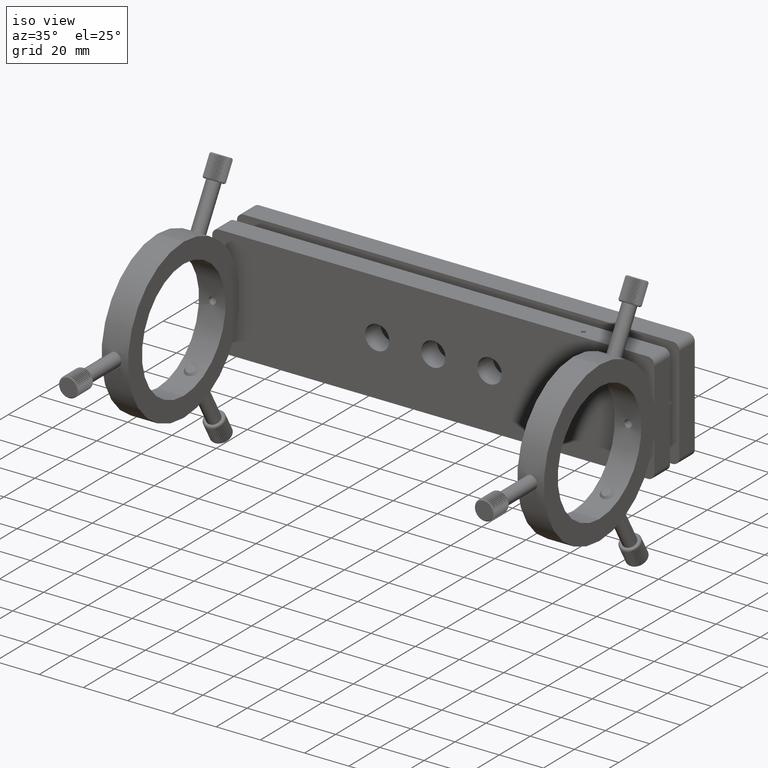
[diagram: clean part render]
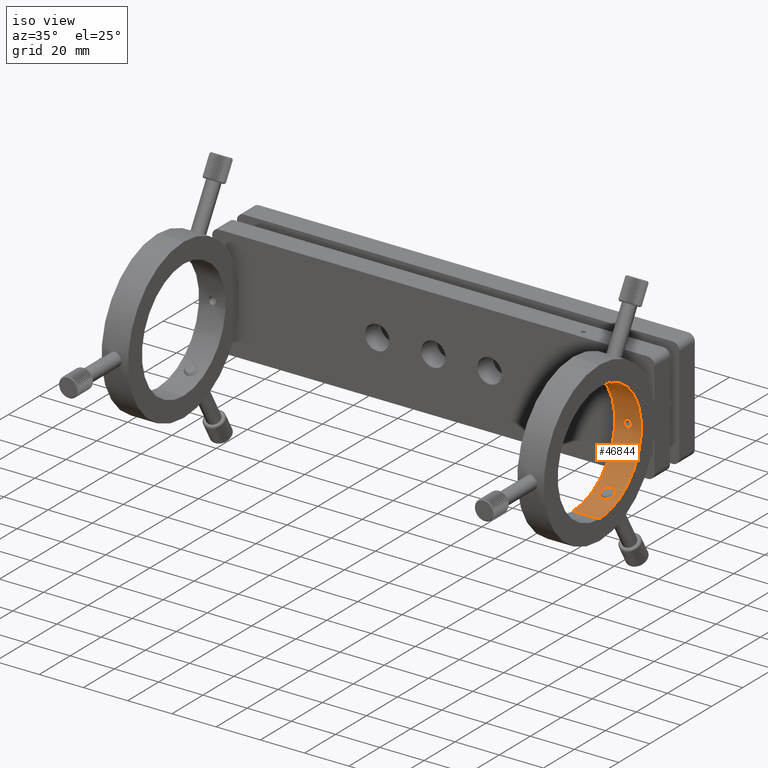
[diagram: same view with one face highlighted and labeled with its STEP entity id]
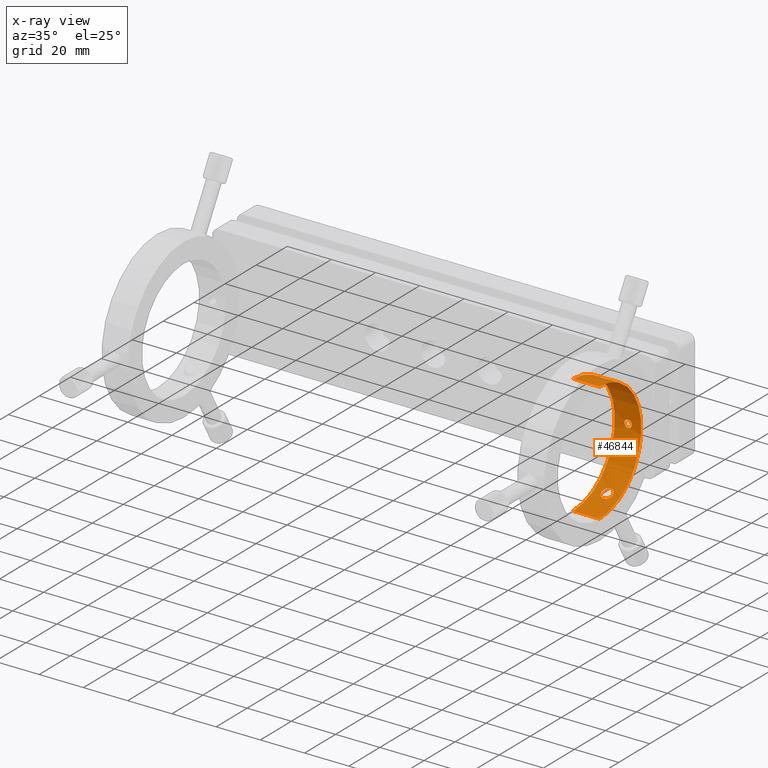
[diagram: x-ray of the same camera — body ghosted, the highlighted face saturated]
A machine part, iso view. The second image highlights one B-rep face of the part: STEP entity #46844.
The next image is the same camera in x-ray: the body ghosted, the highlighted face saturated — about 0% of this face is hidden behind the body in this view.
In plain terms, the highlighted cylindrical surface (partial cylindrical patch) has radius 27 mm, axis along (1, -0, 0).
Its self-contained STEP definition (entity closure, byte-faithful):
#313 = CARTESIAN_POINT ( 'NONE',  ( 88.71693914623077100, -25.91295791704509100, -1.942341319654012400E-015 ) ) ;
#349 = VERTEX_POINT ( 'NONE', #6432 ) ;
#398 = EDGE_CURVE ( 'NONE', #10161, #8938, #41998, .T. ) ;
#666 = CARTESIAN_POINT ( 'NONE',  ( 89.26028788232962100, -41.40628206874961100, 24.42540312065094100 ) ) ;
#779 = CARTESIAN_POINT ( 'NONE',  ( 91.09759897672583400, -25.95370413744505100, -1.483358571569484600 ) ) ;
#991 = CARTESIAN_POINT ( 'NONE',  ( 88.19790793861736200, -40.51316261916271300, 23.98465268375120000 ) ) ;
#1086 = CARTESIAN_POINT ( 'NONE',  ( 92.73959206605607600, -38.72194532464897100, -22.97037465325696800 ) ) ;
#1300 = CARTESIAN_POINT ( 'NONE',  ( 88.37731866243467500, -38.11572552407042700, 22.58451724495219900 ) ) ;
#1568 = CARTESIAN_POINT ( 'NONE',  ( 90.53014524056013100, -37.30588934881392000, -22.03223571738762800 ) ) ;
#1728 = CARTESIAN_POINT ( 'NONE',  ( 92.85100372107240200, -39.69632608730525900, -23.54456835397855500 ) ) ;
#1889 = EDGE_LOOP ( 'NONE', ( #24956, #16608, #12272, #7391 ) ) ;
#2411 = CARTESIAN_POINT ( 'NONE',  ( 92.25169898758107900, -40.86766389173001800, 24.16453140492767900 ) ) ;
#2580 = CARTESIAN_POINT ( 'NONE',  ( 91.89203864277958200, -41.17082945453542900, 24.31317875682664800 ) ) ;
#2606 = CARTESIAN_POINT ( 'NONE',  ( 89.11170750235031300, -41.33425366928968000, -24.39143328542642300 ) ) ;
#2851 = EDGE_CURVE ( 'NONE', #43583, #349, #4417, .T. ) ;
#3185 = CARTESIAN_POINT ( 'NONE',  ( 90.15054143025082600, -25.96276068515827600, 1.639303137904372800 ) ) ;
#3353 = CARTESIAN_POINT ( 'NONE',  ( 91.96430041555505900, -25.91613171525491300, 0.4272001033201475700 ) ) ;
#3510 = CARTESIAN_POINT ( 'NONE',  ( 88.93558841772109200, -25.92550334081184000, 0.8278212260220021400 ) ) ;
#3662 = CARTESIAN_POINT ( 'NONE',  ( 90.58282259888321200, -25.96341702383584100, 1.649922922802727000 ) ) ;
#3674 = CARTESIAN_POINT ( 'NONE',  ( 92.35373792534305400, -40.75620457674102700, -24.10875507086635100 ) ) ;
#3846 = CARTESIAN_POINT ( 'NONE',  ( 90.36693914623079100, -41.63601636773608300, -24.53223571738764600 ) ) ;
#4417 = LINE ( 'NONE', #12970, #43319 ) ;
#4578 = CARTESIAN_POINT ( 'NONE',  ( 89.25717380858128500, -37.51454367034093500, 22.17865573987122500 ) ) ;
#4688 = CARTESIAN_POINT ( 'NONE',  ( 91.97310042328231800, -25.91572701174252600, -0.4346578457671056400 ) ) ;
#4742 = CARTESIAN_POINT ( 'NONE',  ( 90.36693914623072000, -41.63601636773625400, 24.53223571738768500 ) ) ;
#4902 = EDGE_LOOP ( 'NONE', ( #16819, #17560 ) ) ;
#5022 = CARTESIAN_POINT ( 'NONE',  ( 84.36693914623072000, -52.91295791704509100, 26.99999999999999300 ) ) ;
#5026 = CARTESIAN_POINT ( 'NONE',  ( 90.79752532690265800, -25.96072411873246500, -1.607470466293399600 ) ) ;
#5077 = CARTESIAN_POINT ( 'NONE',  ( 88.83881242538730300, -37.73002209735227600, 22.32681951531578700 ) ) ;
#5090 = CARTESIAN_POINT ( 'NONE',  ( 89.26028788232966300, -37.51327624103354500, -22.17777515806230000 ) ) ;
#5391 = CARTESIAN_POINT ( 'NONE',  ( 90.04154320002265900, -37.31884729831206500, -22.04143250485316200 ) ) ;
#5879 = CARTESIAN_POINT ( 'NONE',  ( 90.03646404388636900, -41.63601636773608300, -24.53223571738763900 ) ) ;
#6369 = CARTESIAN_POINT ( 'NONE',  ( 88.71312496508728900, -41.07542067914546600, -24.26697496150304900 ) ) ;
#6432 = CARTESIAN_POINT ( 'NONE',  ( 96.36693914623082000, -52.91295791704509100, -26.99999999999999300 ) ) ;
#6666 = CARTESIAN_POINT ( 'NONE',  ( 92.86687999279071400, -39.27088047108174600, 23.30065112601596400 ) ) ;
#6806 = CARTESIAN_POINT ( 'NONE',  ( 92.01693914623072600, -25.91295791704509500, 1.717421317518219500E-015 ) ) ;
#6973 = CARTESIAN_POINT ( 'NONE',  ( 89.27749987547203100, -25.94152017434152700, 1.243980416632381600 ) ) ;
#7072 = VERTEX_POINT ( 'NONE', #12535 ) ;
#7124 = CARTESIAN_POINT ( 'NONE',  ( 88.71693914623078600, -25.91295791704508700, 0.1077001652021071400 ) ) ;
#7225 = EDGE_CURVE ( 'NONE', #26781, #10240, #15886, .T. ) ;
#7285 = CARTESIAN_POINT ( 'NONE',  ( 90.80001557532223400, -25.96067324348842200, 1.606593475439047000 ) ) ;
#7391 = ORIENTED_EDGE ( 'NONE', *, *, #7225, .F. ) ;
#7456 = CARTESIAN_POINT ( 'NONE',  ( 91.67925665004254700, -25.93155504907102600, 1.005957496595285300 ) ) ;
#7469 = CARTESIAN_POINT ( 'NONE',  ( 92.61409268216247900, -40.38333544869318100, -23.91717404385531500 ) ) ;
#7628 = CARTESIAN_POINT ( 'NONE',  ( 91.47594728453640300, -41.40529623117225800, -24.42493995307666300 ) ) ;
#8204 = CARTESIAN_POINT ( 'NONE',  ( 90.04154320002261600, -41.62157274140883300, 24.52561219767411800 ) ) ;
#8367 = CARTESIAN_POINT ( 'NONE',  ( 90.20377113178243200, -41.63601636773626100, 24.53223571738768500 ) ) ;
#8530 = CARTESIAN_POINT ( 'NONE',  ( 87.94623844231246300, -38.85750917287580800, 23.05363109537896100 ) ) ;
#8655 = CARTESIAN_POINT ( 'NONE',  ( 89.04739468055439000, -25.93156365996145100, -1.013694613292268800 ) ) ;
#8791 = CARTESIAN_POINT ( 'NONE',  ( 91.17231316244313200, -37.41058516013752900, -22.10611685802087600 ) ) ;
#8938 = VERTEX_POINT ( 'NONE', #22492 ) ;
#9098 = CARTESIAN_POINT ( 'NONE',  ( 92.78679639433086400, -39.97878124443673900, -23.70090989181247600 ) ) ;
#9838 = CARTESIAN_POINT ( 'NONE',  ( 90.36693914623079100, -41.63601636773608300, -24.53223571738764600 ) ) ;
#9974 = CARTESIAN_POINT ( 'NONE',  ( 92.78679639433080700, -38.85445619423389000, 23.05178052142122900 ) ) ;
#10002 = CARTESIAN_POINT ( 'NONE',  ( 88.48275648324971600, -40.86807457208168900, -24.16472939734893500 ) ) ;
#10132 = CARTESIAN_POINT ( 'NONE',  ( 92.01980149125689900, -37.81521519304924100, 22.38462669957388900 ) ) ;
#10161 = VERTEX_POINT ( 'NONE', #29391 ) ;
#10216 = DIRECTION ( 'NONE',  ( 1.000000000000000000, -2.025454320056202900E-032, 1.054711873393898300E-015 ) ) ;
#10240 = VERTEX_POINT ( 'NONE', #32860 ) ;
#10294 = CARTESIAN_POINT ( 'NONE',  ( 92.73959206605601900, -40.11553622907657500, 23.77496473706846600 ) ) ;
#10905 = CARTESIAN_POINT ( 'NONE',  ( 88.71693914623077100, -25.91295791704509100, -1.942341319654012400E-015 ) ) ;
#11030 = CARTESIAN_POINT ( 'NONE',  ( 92.01693914623072600, -25.91295791704509500, 1.717421317518219500E-015 ) ) ;
#11084 = CARTESIAN_POINT ( 'NONE',  ( 92.01980149125691400, -41.07617390298074900, -24.26734208856908400 ) ) ;
#11154 = B_SPLINE_CURVE_WITH_KNOTS ( 'NONE', 3,
 ( #3846, #33694, #26270, #30200, #31042, #7628, #22461, #33362, #11084, #48792, #3674, #33856, #7469, #16180, #9098, #1728, #12242, #39253, #35470, #12562, #1086, #24270, #34992, #46187, #31511, #39080, #43039, #46652, #24117, #8791, #31351, #34843, #1568, #27733 ),
 .UNSPECIFIED., .F., .F.,
 ( 4, 2, 2, 2, 2, 2, 2, 2, 2, 2, 2, 2, 2, 2, 2, 2, 4 ),
 ( 0.0000000000000000000, 0.0004887702690820997300, 0.0009775405381641994500, 0.001466310807246299100, 0.001955081076328398900, 0.002443851345410498700, 0.002932621614492598100, 0.003421391883574698000, 0.003910162152656797800, 0.004398932421738897600, 0.004887702690820997500, 0.005376472959903097300, 0.005865243228985196300, 0.006354013498067296100, 0.006842783767149395900, 0.007331554036231495800, 0.007820324305313595600 ),
 .UNSPECIFIED. ) ;
#11223 = CARTESIAN_POINT ( 'NONE',  ( 89.83602211320942400, -25.95837764036506800, 1.565987256897979800 ) ) ;
#12104 = CARTESIAN_POINT ( 'NONE',  ( 90.25672849628244900, -25.96341627302213000, -1.649910659698136800 ) ) ;
#12155 = CARTESIAN_POINT ( 'NONE',  ( 90.03646404388632600, -37.30588934881406300, 22.03223571738773500 ) ) ;
#12242 = CARTESIAN_POINT ( 'NONE',  ( 92.86687999279075700, -39.55504084017859200, -23.46471119160704800 ) ) ;
#12272 = ORIENTED_EDGE ( 'NONE', *, *, #46968, .F. ) ;
#12306 = CARTESIAN_POINT ( 'NONE',  ( 89.11170750235025700, -37.57870918103028400, 22.22316866417626000 ) ) ;
#12480 = CARTESIAN_POINT ( 'NONE',  ( 88.48508743856619700, -38.00591613514485100, -22.51207278851296000 ) ) ;
#12535 = CARTESIAN_POINT ( 'NONE',  ( 90.36693914623079100, -41.63601636773608300, -24.53223571738764600 ) ) ;
#12562 = CARTESIAN_POINT ( 'NONE',  ( 92.78684029790711900, -38.85482506467888400, -23.05199825724794800 ) ) ;
#12581 = CARTESIAN_POINT ( 'NONE',  ( 91.68519442467071200, -25.93162864647801400, -1.015411206887411700 ) ) ;
#12647 = CARTESIAN_POINT ( 'NONE',  ( 88.71569909594374800, -37.81403663151161300, -22.38383103795883100 ) ) ;
#12682 = EDGE_CURVE ( 'NONE', #37979, #42246, #35767, .T. ) ;
#12804 = CARTESIAN_POINT ( 'NONE',  ( 90.20377113178250300, -37.30588934881392000, -22.03223571738762500 ) ) ;
#12970 = CARTESIAN_POINT ( 'NONE',  ( 84.36693914623077700, -52.91295791704509100, -27.00000000000003900 ) ) ;
#13029 = FACE_BOUND ( 'NONE', #48171, .T. ) ;
#13164 = CARTESIAN_POINT ( 'NONE',  ( 84.36693914623072000, -52.91295791704509100, 27.00000000000002500 ) ) ;
#13275 = CARTESIAN_POINT ( 'NONE',  ( 90.36693914623079100, -37.30588934881392000, -22.03223571738762100 ) ) ;
#13449 = CARTESIAN_POINT ( 'NONE',  ( 88.11950103492330300, -40.38296355990035400, -23.91698585037553200 ) ) ;
#13579 = CARTESIAN_POINT ( 'NONE',  ( 90.53014524056010300, -41.63601636773624600, 24.53223571738768900 ) ) ;
#14219 = CARTESIAN_POINT ( 'NONE',  ( 90.69471139435314900, -37.31918188184368300, 22.04166889366898000 ) ) ;
#14527 = CARTESIAN_POINT ( 'NONE',  ( 91.79901940316560200, -25.92546493686239400, 0.8266038068291619000 ) ) ;
#14677 = CARTESIAN_POINT ( 'NONE',  ( 91.60956532232641800, -25.93489576997605200, 1.090854160047212100 ) ) ;
#15032 = CARTESIAN_POINT ( 'NONE',  ( 84.36693914623077700, -52.91295791704509100, -27.00000000000000700 ) ) ;
#15766 = CARTESIAN_POINT ( 'NONE',  ( 88.37949475896810700, -40.75535493968742900, 24.10832175068400200 ) ) ;
#15886 = LINE ( 'NONE', #13164, #26561 ) ;
#15916 = CARTESIAN_POINT ( 'NONE',  ( 88.48508743856608300, -40.87045188129872000, 24.16591327265818700 ) ) ;
#16036 = CARTESIAN_POINT ( 'NONE',  ( 89.53954219653229500, -25.95087244318883200, -1.431625285050159200 ) ) ;
#16180 = CARTESIAN_POINT ( 'NONE',  ( 92.73877632036693800, -40.11747142309504000, -23.77600005944308100 ) ) ;
#16251 = CARTESIAN_POINT ( 'NONE',  ( 89.11498036992618700, -37.57713769710993300, -22.22208378763991700 ) ) ;
#16418 = CARTESIAN_POINT ( 'NONE',  ( 88.19790793861740500, -38.34153704091125500, -22.73086407156865000 ) ) ;
#16574 = CARTESIAN_POINT ( 'NONE',  ( 88.84155763989034000, -37.72826201596434700, -22.32562205347842600 ) ) ;
#16608 = ORIENTED_EDGE ( 'NONE', *, *, #2851, .T. ) ;
#16819 = ORIENTED_EDGE ( 'NONE', *, *, #29466, .F. ) ;
#17066 = CARTESIAN_POINT ( 'NONE',  ( 89.25717380858135600, -41.40488574787927000, -24.42474578557768800 ) ) ;
#17369 = CARTESIAN_POINT ( 'NONE',  ( 90.36693914623073500, -37.30588934881406300, 22.03223571738773500 ) ) ;
#17560 = ORIENTED_EDGE ( 'NONE', *, *, #34101, .F. ) ;
#17682 = CARTESIAN_POINT ( 'NONE',  ( 91.17231316244304700, -41.51968551742550100, 24.47850705542826000 ) ) ;
#17830 = CARTESIAN_POINT ( 'NONE',  ( 91.62133499403778100, -41.33459647964201600, 24.39159257851655500 ) ) ;
#18295 = CARTESIAN_POINT ( 'NONE',  ( 89.05508111830802400, -25.93157709467661600, 1.006519450796833800 ) ) ;
#18316 = FACE_OUTER_BOUND ( 'NONE', #1889, .T. ) ;
#18639 = CARTESIAN_POINT ( 'NONE',  ( 89.93889328263992400, -25.96023029761005700, 1.597159819206348300 ) ) ;
#18684 = CARTESIAN_POINT ( 'NONE',  ( 92.35373792534299800, -38.11254024221008100, 22.58243475567790500 ) ) ;
#19395 = CARTESIAN_POINT ( 'NONE',  ( 88.12105077201242400, -40.38572713804381200, 23.91843195474404700 ) ) ;
#19554 = CARTESIAN_POINT ( 'NONE',  ( 87.88338959637619000, -39.69902698495519600, 23.54607330503641500 ) ) ;
#19661 = CARTESIAN_POINT ( 'NONE',  ( 90.58332316888609600, -25.96343258193902400, -1.650177034178419900 ) ) ;
#19831 = CARTESIAN_POINT ( 'NONE',  ( 89.83379798801621500, -25.95833325854834000, -1.565225978753670200 ) ) ;
#20042 = CARTESIAN_POINT ( 'NONE',  ( 88.84155763989025400, -41.17075001398318100, 24.31314342581663400 ) ) ;
#20055 = CARTESIAN_POINT ( 'NONE',  ( 87.86706826062454900, -39.26829671586889200, -23.29915191425655900 ) ) ;
#20162 = DIRECTION ( 'NONE',  ( -1.000000000000000000, 2.025454320056202900E-032, -1.054711873393898300E-015 ) ) ;
#20546 = CARTESIAN_POINT ( 'NONE',  ( 89.71900990088090600, -37.37136319026536300, -22.07849329559904600 ) ) ;
#21182 = CARTESIAN_POINT ( 'NONE',  ( 92.86699797286453900, -39.55346979636629400, 23.46381676308041300 ) ) ;
#21338 = CARTESIAN_POINT ( 'NONE',  ( 92.61409268216240800, -38.46488884250867100, 22.80955837934877900 ) ) ;
#21666 = CARTESIAN_POINT ( 'NONE',  ( 92.01830285759709200, -41.07751656232388600, 24.26800391698875700 ) ) ;
#21799 = CARTESIAN_POINT ( 'NONE',  ( 89.53961704673703500, -25.95087379332166200, 1.431641291073628900 ) ) ;
#21953 = CARTESIAN_POINT ( 'NONE',  ( 91.38122143728571700, -25.94477039625771700, 1.319114051965992300 ) ) ;
#22124 = CARTESIAN_POINT ( 'NONE',  ( 88.80111993606782100, -25.91800319018784600, 0.5314310150677722400 ) ) ;
#22461 = CARTESIAN_POINT ( 'NONE',  ( 91.61951730268094700, -41.33558462377445200, -24.39206240607687100 ) ) ;
#22467 = FACE_BOUND ( 'NONE', #4902, .T. ) ;
#22492 = CARTESIAN_POINT ( 'NONE',  ( 90.36693914623072000, -41.63601636773625400, 24.53223571738768500 ) ) ;
#22493 = CARTESIAN_POINT ( 'NONE',  ( 92.35502228917177100, -40.75456451547763900, 24.10792096081527400 ) ) ;
#23367 = CARTESIAN_POINT ( 'NONE',  ( 88.71312496508726000, -37.81590974633248700, 22.38509544701694400 ) ) ;
#23429 = CARTESIAN_POINT ( 'NONE',  ( 96.36693914623079100, -52.91295791704509100, 6.328271240363415200E-015 ) ) ;
#23649 = CARTESIAN_POINT ( 'NONE',  ( 91.19239725641098500, -25.95093177866442200, -1.432733761651013600 ) ) ;
#23856 = CARTESIAN_POINT ( 'NONE',  ( 87.88293089252135800, -39.13142498892304400, 23.21841717759591400 ) ) ;
#24034 = CARTESIAN_POINT ( 'NONE',  ( 87.86681154288477600, -39.55425275738639400, -23.46427615921268000 ) ) ;
#24117 = CARTESIAN_POINT ( 'NONE',  ( 91.47515255575648000, -37.51384530052842300, -22.17817157157961800 ) ) ;
#24270 = CARTESIAN_POINT ( 'NONE',  ( 92.61428055242799900, -38.46508030048068600, -22.80968615490605300 ) ) ;
#24682 = CARTESIAN_POINT ( 'NONE',  ( 88.37731866243471800, -40.75280844719622300, -24.10703778049422400 ) ) ;
#24905 = ORIENTED_EDGE ( 'NONE', *, *, #32329, .F. ) ;
#24956 = ORIENTED_EDGE ( 'NONE', *, *, #40759, .T. ) ;
#25190 = CARTESIAN_POINT ( 'NONE',  ( 87.88293089252141500, -39.69598526964318800, -23.54436620764346700 ) ) ;
#25940 = CARTESIAN_POINT ( 'NONE',  ( 88.72773218377997800, -25.91362355402499100, 0.2170855091574148400 ) ) ;
#26270 = CARTESIAN_POINT ( 'NONE',  ( 90.69471139435319200, -41.62120073092334100, -24.52544063424395300 ) ) ;
#26312 = CARTESIAN_POINT ( 'NONE',  ( 91.01437654949266700, -37.37133574985441000, 22.07847365798739900 ) ) ;
#26561 = VECTOR ( 'NONE', #10216, 1000.000000000000000 ) ;
#26734 = CARTESIAN_POINT ( 'NONE',  ( 84.36693914623074900, -52.91295791704509100, -6.328271240363397800E-015 ) ) ;
#26781 = VERTEX_POINT ( 'NONE', #5022 ) ;
#27106 = CARTESIAN_POINT ( 'NONE',  ( 92.01693914623069800, -25.91295791704508700, -0.2180433936426509300 ) ) ;
#27311 = CARTESIAN_POINT ( 'NONE',  ( 87.86681154288470500, -39.27165126158282500, 23.30111610953708400 ) ) ;
#27492 = CARTESIAN_POINT ( 'NONE',  ( 90.36693914623079100, -37.30588934881392000, -22.03223571738762100 ) ) ;
#27639 = CARTESIAN_POINT ( 'NONE',  ( 88.48275648324968800, -38.00813005584611700, 22.51353966103291900 ) ) ;
#27646 = ORIENTED_EDGE ( 'NONE', *, *, #398, .F. ) ;
#27733 = CARTESIAN_POINT ( 'NONE',  ( 90.36693914623079100, -37.30588934881392000, -22.03223571738762100 ) ) ;
#28714 = ORIENTED_EDGE ( 'NONE', *, *, #34871, .F. ) ;
#28759 = CARTESIAN_POINT ( 'NONE',  ( 90.36693914623072000, -41.63601636773625400, 24.53223571738768500 ) ) ;
#28949 = CARTESIAN_POINT ( 'NONE',  ( 87.99417222495500800, -40.11525171581193000, -23.77481202331702900 ) ) ;
#29083 = CARTESIAN_POINT ( 'NONE',  ( 91.47594728453634600, -37.51417027470773700, 22.17839733466114900 ) ) ;
#29249 = CARTESIAN_POINT ( 'NONE',  ( 91.89122685772905200, -37.72763866139970900, 22.32519562955295800 ) ) ;
#29390 = CARTESIAN_POINT ( 'NONE',  ( 89.63621751520318500, -25.95370200932228500, 1.483318874236913000 ) ) ;
#29391 = CARTESIAN_POINT ( 'NONE',  ( 90.36693914623073500, -37.30588934881406300, 22.03223571738773500 ) ) ;
#29466 = EDGE_CURVE ( 'NONE', #7072, #40894, #11154, .T. ) ;
#29542 = CARTESIAN_POINT ( 'NONE',  ( 89.36083453192036100, -25.94479585632309000, 1.312178397810686200 ) ) ;
#29875 = CARTESIAN_POINT ( 'NONE',  ( 91.84971251961263800, -25.92269288524736800, 0.7318342902622836400 ) ) ;
#30200 = CARTESIAN_POINT ( 'NONE',  ( 91.01437654949269500, -41.56324993603792000, -24.49867644180025600 ) ) ;
#30938 = CARTESIAN_POINT ( 'NONE',  ( 89.70813878242920200, -37.36027348800554600, 22.07101569964572000 ) ) ;
#31042 = CARTESIAN_POINT ( 'NONE',  ( 91.17320887942391000, -41.51940667271659200, -24.47837738149257100 ) ) ;
#31158 = DIRECTION ( 'NONE',  ( -1.000000000000000000, 2.025454320056202900E-032, -1.054711873393898300E-015 ) ) ;
#31212 = CARTESIAN_POINT ( 'NONE',  ( 88.71693914623077100, -25.91295791704509100, -1.942341319654012400E-015 ) ) ;
#31258 = CARTESIAN_POINT ( 'NONE',  ( 89.56115587727985900, -41.51949164218260100, 24.47841565395159300 ) ) ;
#31303 = FACE_BOUND ( 'NONE', #43445, .T. ) ;
#31351 = CARTESIAN_POINT ( 'NONE',  ( 91.01645375927367400, -37.37176693909465500, -22.07877746542720100 ) ) ;
#31367 = CARTESIAN_POINT ( 'NONE',  ( 88.71693914623075700, -25.91295791704508400, -0.2153510065775076400 ) ) ;
#31412 = CARTESIAN_POINT ( 'NONE',  ( 88.11950103492326000, -38.46523776723939400, 22.80978634775083700 ) ) ;
#31511 = CARTESIAN_POINT ( 'NONE',  ( 92.25169898758116500, -38.00850686248851000, -22.51379632443969600 ) ) ;
#32329 = EDGE_CURVE ( 'NONE', #8938, #10161, #38998, .T. ) ;
#32723 = CARTESIAN_POINT ( 'NONE',  ( 91.17320887942386800, -37.41083688341447600, 22.10629350765464500 ) ) ;
#32860 = CARTESIAN_POINT ( 'NONE',  ( 96.36693914623076300, -52.91295791704509100, 27.00000000000000700 ) ) ;
#32884 = CARTESIAN_POINT ( 'NONE',  ( 92.25028380844639700, -38.00733193378761900, 22.51301094670559200 ) ) ;
#33171 = CARTESIAN_POINT ( 'NONE',  ( 91.19714384748918700, -25.95136794581019400, 1.442032573406852900 ) ) ;
#33362 = CARTESIAN_POINT ( 'NONE',  ( 91.89122685772909400, -41.17143098521773200, -24.31347005474244600 ) ) ;
#33532 = AXIS2_PLACEMENT_3D ( 'NONE', #26734, #37752, #38257 ) ;
#33694 = CARTESIAN_POINT ( 'NONE',  ( 90.53221526026915500, -41.63601636773608300, -24.53223571738763900 ) ) ;
#33856 = CARTESIAN_POINT ( 'NONE',  ( 92.53649292676891500, -40.51247707324661500, -23.98430315199099300 ) ) ;
#34101 = EDGE_CURVE ( 'NONE', #40894, #7072, #42520, .T. ) ;
#34316 = CYLINDRICAL_SURFACE ( 'NONE', #33532, 27.00000000000003200 ) ;
#34472 = AXIS2_PLACEMENT_3D ( 'NONE', #23429, #31158, #42843 ) ;
#34598 = CARTESIAN_POINT ( 'NONE',  ( 87.99540555904815200, -40.11842098950667400, 23.77651620767714400 ) ) ;
#34704 = CARTESIAN_POINT ( 'NONE',  ( 89.36018875164937500, -25.94477270290525800, -1.311712739960830600 ) ) ;
#34843 = CARTESIAN_POINT ( 'NONE',  ( 90.69592068959616400, -37.31928783238933500, -22.04174413860880900 ) ) ;
#34871 = EDGE_CURVE ( 'NONE', #42246, #37979, #38902, .T. ) ;
#34992 = CARTESIAN_POINT ( 'NONE',  ( 92.53600041035625200, -38.34163544180108800, -22.73092484881871700 ) ) ;
#35058 = CARTESIAN_POINT ( 'NONE',  ( 89.11498036992613000, -41.33597894189031800, 24.39225179215491200 ) ) ;
#35072 = CARTESIAN_POINT ( 'NONE',  ( 89.56115587727995800, -37.41076125375970200, -22.10623905816804000 ) ) ;
#35180 = CARTESIAN_POINT ( 'NONE',  ( 91.45666641376907100, -25.94150609155889600, -1.243617186651646100 ) ) ;
#35251 = DIRECTION ( 'NONE',  ( 1.000000000000000000, -2.025454320056202900E-032, 1.054711873393898300E-015 ) ) ;
#35255 = AXIS2_PLACEMENT_3D ( 'NONE', #39106, #20162, #46526 ) ;
#35470 = CARTESIAN_POINT ( 'NONE',  ( 92.85071848540398800, -39.12967159700982500, -23.21738015295586900 ) ) ;
#35767 = B_SPLINE_CURVE_WITH_KNOTS ( 'NONE', 3,
 ( #31212, #31367, #39101, #42731, #8655, #42076, #34704, #16036, #42409, #19831, #38793, #46206, #12104, #19661, #5026, #779, #23649, #42561, #35180, #12581, #45889, #4688, #27106, #38952 ),
 .UNSPECIFIED., .F., .F.,
 ( 4, 2, 2, 2, 2, 2, 2, 2, 2, 2, 2, 4 ),
 ( 0.005159854356007765100, 0.005804688458208466500, 0.006449522560409167900, 0.006771939611509534200, 0.007094356662609899700, 0.007416773713710266000, 0.007739190764810631500, 0.008384024867011404000, 0.008706441918111790200, 0.009028858969212176500, 0.009673693071412949000, 0.01031852717361372200 ),
 .UNSPECIFIED. ) ;
#36174 = CARTESIAN_POINT ( 'NONE',  ( 92.73877632036691000, -38.72008111216221200, 22.96921638726304200 ) ) ;
#36513 = CARTESIAN_POINT ( 'NONE',  ( 92.85071848540394500, -39.69776005528243000, 23.54536617726308400 ) ) ;
#36534 = CARTESIAN_POINT ( 'NONE',  ( 89.70813878242921600, -41.57523984834663400, -24.50452766241384200 ) ) ;
#36664 = CARTESIAN_POINT ( 'NONE',  ( 92.61428055242794200, -40.38312906282859400, 23.91707212416643800 ) ) ;
#36823 = CARTESIAN_POINT ( 'NONE',  ( 92.53600041035618100, -40.51306078407527900, 23.98459785470589300 ) ) ;
#36962 = CARTESIAN_POINT ( 'NONE',  ( 92.00623535175623100, -25.91361803632991100, 0.2162658169107107600 ) ) ;
#37752 = DIRECTION ( 'NONE',  ( 1.000000000000000000, -2.025454320056202900E-032, 1.054711873393898300E-015 ) ) ;
#37979 = VERTEX_POINT ( 'NONE', #313 ) ;
#38257 = DIRECTION ( 'NONE',  ( -1.027984282060329000E-015, 0.0000000000000000000, 1.000000000000000000 ) ) ;
#38505 = CARTESIAN_POINT ( 'NONE',  ( 88.71569909594366300, -41.07745224692101300, 24.26796492199305900 ) ) ;
#38793 = CARTESIAN_POINT ( 'NONE',  ( 89.93869397782103200, -25.96022567937454500, -1.597081417250377600 ) ) ;
#38849 = CARTESIAN_POINT ( 'NONE',  ( 87.99540555904823700, -38.71915933147357700, -22.96865211274501900 ) ) ;
#38902 = B_SPLINE_CURVE_WITH_KNOTS ( 'NONE', 3,
 ( #6806, #44862, #36962, #3353, #48626, #29875, #14527, #7456, #14677, #21953, #33171, #7285, #3662, #40891, #3185, #18639, #11223, #29390, #21799, #29542, #6973, #48166, #18295, #3510, #44703, #22124, #40570, #25940, #7124, #10905 ),
 .UNSPECIFIED., .F., .F.,
 ( 4, 2, 2, 2, 2, 2, 2, 2, 2, 2, 2, 2, 2, 2, 4 ),
 ( 2.220833694804172700E-020, 0.0003224908972504639100, 0.0006449817945009278100, 0.0009674726917513917700, 0.001289963589001855600, 0.001934945383502812800, 0.002579927178003770200, 0.002902418075254269800, 0.003224908972504768800, 0.003547399869755268800, 0.003869890767005767900, 0.004192381664256267400, 0.004514872561506766100, 0.004837363458757265600, 0.005159854356007765100 ),
 .UNSPECIFIED. ) ;
#38952 = CARTESIAN_POINT ( 'NONE',  ( 92.01693914623072600, -25.91295791704509500, 1.717421317518219500E-015 ) ) ;
#38998 = B_SPLINE_CURVE_WITH_KNOTS ( 'NONE', 3,
 ( #4742, #8367, #8204, #41951, #31258, #666, #35058, #20042, #38505, #15916, #15766, #991, #19395, #34598, #42127, #19554, #46417, #27311, #23856, #8530, #45937, #31412, #45774, #1300, #27639, #23367, #5077, #12306, #4578, #30938, #12155, #42296 ),
 .UNSPECIFIED., .F., .F.,
 ( 4, 2, 2, 2, 2, 2, 2, 2, 2, 2, 2, 2, 2, 2, 2, 4 ),
 ( 0.007820324305313597300, 0.008308980532614342100, 0.008797636759915086800, 0.009286292987215831500, 0.009774949214516574400, 0.01026360544181731900, 0.01075226166911806400, 0.01124091789641880900, 0.01172957412371955200, 0.01221823035102029600, 0.01270688657832104100, 0.01319554280562178600, 0.01368419903292253000, 0.01417285526022327500, 0.01466151148752402000, 0.01563882394212549900 ),
 .UNSPECIFIED. ) ;
#39005 = CARTESIAN_POINT ( 'NONE',  ( 88.37949475896816400, -38.11334032702276200, -22.58295390285915300 ) ) ;
#39080 = CARTESIAN_POINT ( 'NONE',  ( 92.01830285759712100, -37.81397070315329500, -22.38379483668395400 ) ) ;
#39101 = CARTESIAN_POINT ( 'NONE',  ( 88.76017318428382900, -25.91569020277783500, -0.4324214926152932800 ) ) ;
#39106 = CARTESIAN_POINT ( 'NONE',  ( 84.36693914623074900, -52.91295791704509100, -6.328271240363397800E-015 ) ) ;
#39253 = CARTESIAN_POINT ( 'NONE',  ( 92.86699797286458100, -39.27244059081383700, -23.30156447560453600 ) ) ;
#39656 = CARTESIAN_POINT ( 'NONE',  ( 87.94623844231252000, -39.97565211105677500, -23.69919122173021700 ) ) ;
#39820 = CARTESIAN_POINT ( 'NONE',  ( 88.19619348211361400, -40.51051234799087600, -23.98328271079439500 ) ) ;
#40276 = CARTESIAN_POINT ( 'NONE',  ( 92.78684029790706200, -39.97840824445699300, 23.70069930854978000 ) ) ;
#40439 = CARTESIAN_POINT ( 'NONE',  ( 90.69592068959607900, -41.62108259162112500, 24.52538650084978800 ) ) ;
#40570 = CARTESIAN_POINT ( 'NONE',  ( 88.76992309038996600, -25.91615223816848300, 0.4285618991696941200 ) ) ;
#40759 = EDGE_CURVE ( 'NONE', #26781, #43583, #41514, .T. ) ;
#40891 = CARTESIAN_POINT ( 'NONE',  ( 90.25988228181604700, -25.96342409279081300, 1.650038380420716800 ) ) ;
#40894 = VERTEX_POINT ( 'NONE', #13275 ) ;
#41248 = CARTESIAN_POINT ( 'NONE',  ( 91.47515255575643800, -41.40565423482576800, 24.42510850743075700 ) ) ;
#41514 = CIRCLE ( 'NONE', #35255, 27.00000000000003200 ) ;
#41951 = CARTESIAN_POINT ( 'NONE',  ( 89.71900990088084900, -41.56321920916190700, 24.49866249651310600 ) ) ;
#41998 = B_SPLINE_CURVE_WITH_KNOTS ( 'NONE', 3,
 ( #17369, #44089, #14219, #26312, #32723, #29083, #43751, #29249, #10132, #32884, #18684, #44246, #21338, #36174, #9974, #45067, #6666, #21182, #36513, #40276, #10294, #36664, #36823, #22493, #2411, #21666, #2580, #17830, #41248, #17682, #48818, #40439, #13579, #28759 ),
 .UNSPECIFIED., .F., .F.,
 ( 4, 2, 2, 2, 2, 2, 2, 2, 2, 2, 2, 2, 2, 2, 2, 2, 4 ),
 ( 0.0000000000000000000, 0.0004887702690820998300, 0.0009775405381641996700, 0.001466310807246299500, 0.001955081076328399300, 0.002443851345410499200, 0.002932621614492599000, 0.003421391883574698800, 0.003910162152656798700, 0.004398932421738898500, 0.004887702690820998300, 0.005376472959903098200, 0.005865243228985198000, 0.006354013498067297800, 0.006842783767149397700, 0.007331554036231497500, 0.007820324305313597300 ),
 .UNSPECIFIED. ) ;
#42076 = CARTESIAN_POINT ( 'NONE',  ( 89.27539875138131700, -25.94143228262072800, -1.242017776801348700 ) ) ;
#42127 = CARTESIAN_POINT ( 'NONE',  ( 87.94715729722145200, -39.97867363299951600, 23.70084025564668200 ) ) ;
#42246 = VERTEX_POINT ( 'NONE', #11030 ) ;
#42296 = CARTESIAN_POINT ( 'NONE',  ( 90.36693914623073500, -37.30588934881406300, 22.03223571738773500 ) ) ;
#42409 = CARTESIAN_POINT ( 'NONE',  ( 89.63425349138214000, -25.95364822160444600, -1.482343951425175500 ) ) ;
#42520 = B_SPLINE_CURVE_WITH_KNOTS ( 'NONE', 3,
 ( #27492, #12804, #5391, #20546, #35072, #5090, #16251, #16574, #12647, #12480, #39005, #16418, #46726, #38849, #46576, #42623, #20055, #24034, #25190, #39656, #28949, #13449, #39820, #24682, #10002, #6369, #47225, #2606, #17066, #36534, #5879, #9838 ),
 .UNSPECIFIED., .F., .F.,
 ( 4, 2, 2, 2, 2, 2, 2, 2, 2, 2, 2, 2, 2, 2, 2, 4 ),
 ( 0.007820324305313595600, 0.008308980532614342100, 0.008797636759915088500, 0.009286292987215834900, 0.009774949214516581400, 0.01026360544181732800, 0.01075226166911807300, 0.01124091789641882100, 0.01172957412371956500, 0.01221823035102031400, 0.01270688657832105800, 0.01319554280562180500, 0.01368419903292255100, 0.01417285526022329900, 0.01466151148752404400, 0.01563882394212554400 ),
 .UNSPECIFIED. ) ;
#42561 = CARTESIAN_POINT ( 'NONE',  ( 91.37169433964578500, -25.94484701928745100, -1.313230415708718700 ) ) ;
#42623 = CARTESIAN_POINT ( 'NONE',  ( 87.88338959637630400, -39.12842574155799000, -23.21663652356111400 ) ) ;
#42731 = CARTESIAN_POINT ( 'NONE',  ( 88.92454310955325500, -25.92497404447748000, -0.8295654748866636600 ) ) ;
#42843 = DIRECTION ( 'NONE',  ( 1.027984282060329000E-015, 0.0000000000000000000, -1.000000000000000000 ) ) ;
#43039 = CARTESIAN_POINT ( 'NONE',  ( 91.89203864277963900, -37.72819169813601500, -22.32557092144708800 ) ) ;
#43319 = VECTOR ( 'NONE', #35251, 1000.000000000000000 ) ;
#43445 = EDGE_LOOP ( 'NONE', ( #28714, #44605 ) ) ;
#43583 = VERTEX_POINT ( 'NONE', #15032 ) ;
#43751 = CARTESIAN_POINT ( 'NONE',  ( 91.61951730268087600, -37.57749886932258900, 22.22233058410640500 ) ) ;
#44089 = CARTESIAN_POINT ( 'NONE',  ( 90.53221526026909800, -37.30588934881406300, 22.03223571738773900 ) ) ;
#44246 = CARTESIAN_POINT ( 'NONE',  ( 92.53649292676887200, -38.34218251725305700, 22.73128300586734300 ) ) ;
#44605 = ORIENTED_EDGE ( 'NONE', *, *, #12682, .F. ) ;
#44703 = CARTESIAN_POINT ( 'NONE',  ( 88.88393448407852300, -25.92268015385557700, 0.7313726100462156800 ) ) ;
#44862 = CARTESIAN_POINT ( 'NONE',  ( 92.01693914623072600, -25.91295791704509100, 0.1090466670658035000 ) ) ;
#45067 = CARTESIAN_POINT ( 'NONE',  ( 92.85100372107237400, -39.13107951623054200, 23.21822309401007100 ) ) ;
#45495 = CIRCLE ( 'NONE', #34472, 27.00000000000003200 ) ;
#45774 = CARTESIAN_POINT ( 'NONE',  ( 88.19619348211355700, -38.34404860788024600, 22.73247428725196100 ) ) ;
#45889 = CARTESIAN_POINT ( 'NONE',  ( 91.80818639555306500, -25.92503624567508100, -0.8315574887568313300 ) ) ;
#45937 = CARTESIAN_POINT ( 'NONE',  ( 87.99417222495492300, -38.72221983526953400, 22.97054469209615100 ) ) ;
#46187 = CARTESIAN_POINT ( 'NONE',  ( 92.35502228917181400, -38.11408263333556300, -22.58343803537023200 ) ) ;
#46206 = CARTESIAN_POINT ( 'NONE',  ( 90.14960100807617500, -25.96275166518877600, -1.639154389097082800 ) ) ;
#46417 = CARTESIAN_POINT ( 'NONE',  ( 87.86706826062449200, -39.55763107325429200, 23.46619918337882300 ) ) ;
#46526 = DIRECTION ( 'NONE',  ( 1.027984282060329000E-015, 0.0000000000000000000, -1.000000000000000000 ) ) ;
#46576 = CARTESIAN_POINT ( 'NONE',  ( 87.94715729722150900, -38.85457030664107900, -23.05183889757670100 ) ) ;
#46652 = CARTESIAN_POINT ( 'NONE',  ( 91.62133499403786600, -37.57839982399143300, -22.22295142824753000 ) ) ;
#46726 = CARTESIAN_POINT ( 'NONE',  ( 88.12105077201248100, -38.46260361504801800, -22.80811607105753300 ) ) ;
#46844 = ADVANCED_FACE ( 'NONE', ( #22467, #13029, #31303, #18316 ), #34316, .F. ) ;
#46968 = EDGE_CURVE ( 'NONE', #10240, #349, #45495, .T. ) ;
#47225 = CARTESIAN_POINT ( 'NONE',  ( 88.83881242538737400, -41.16883294091798700, -24.31221788154065100 ) ) ;
#48166 = CARTESIAN_POINT ( 'NONE',  ( 89.12342048400549300, -25.93485726768200500, 1.089966301467005800 ) ) ;
#48171 = EDGE_LOOP ( 'NONE', ( #27646, #24905 ) ) ;
#48626 = CARTESIAN_POINT ( 'NONE',  ( 91.93255843017853100, -25.91801481000850400, 0.5320099274870981900 ) ) ;
#48792 = CARTESIAN_POINT ( 'NONE',  ( 92.25028380844646800, -40.86893151314974700, -24.16515623416322000 ) ) ;
#48818 = CARTESIAN_POINT ( 'NONE',  ( 91.01645375927360200, -41.56277123645708800, 24.49845492468426800 ) ) ;